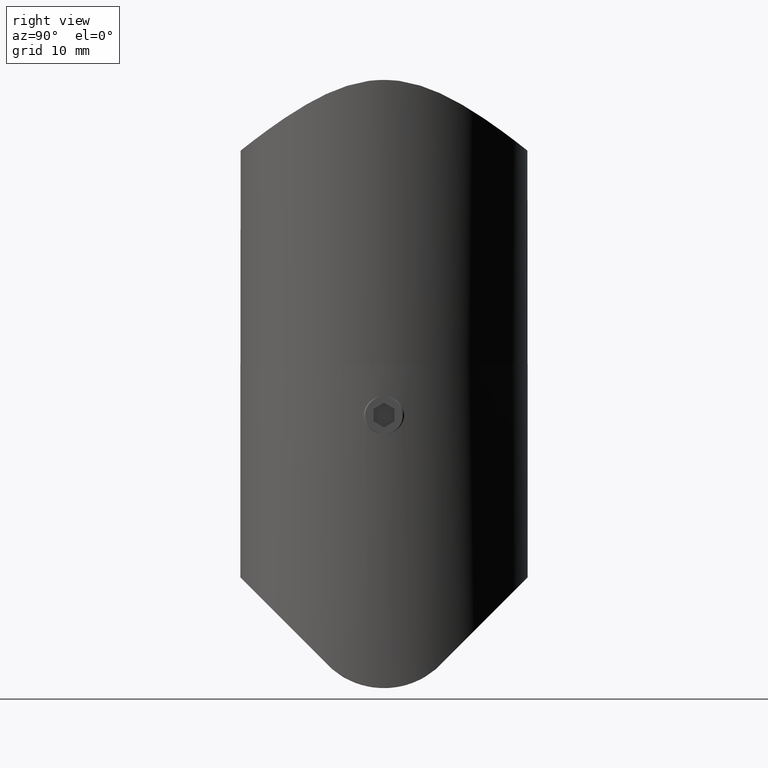
[diagram: clean part render]
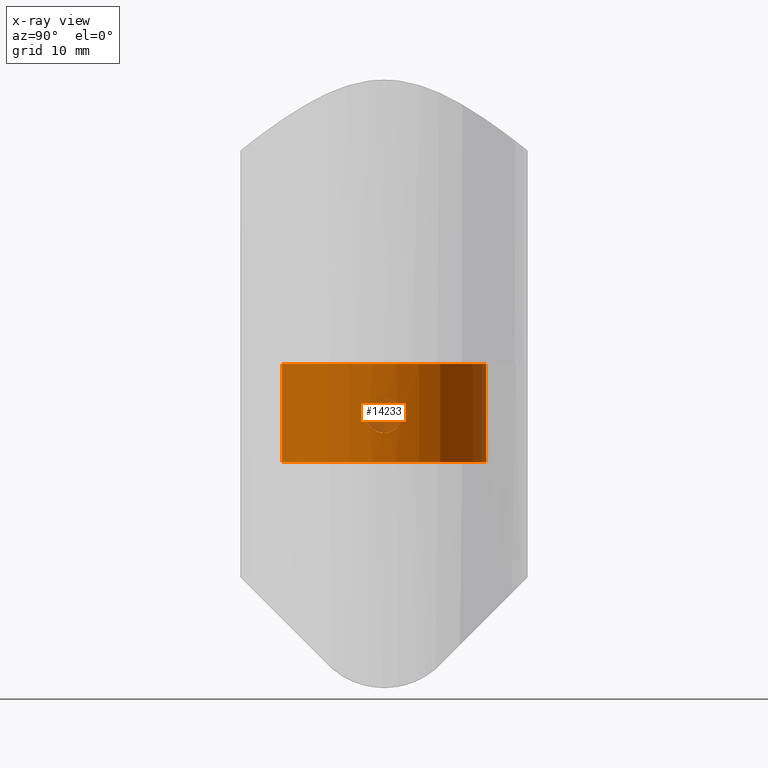
[diagram: x-ray — body ghosted, one internal face saturated and labeled with its STEP entity id]
A machine part, right view, then the same camera in x-ray: the body is ghosted and one INTERNAL B-rep face — a face not visible from any outside direction — is saturated and labeled: STEP entity #14233.
In plain terms, the highlighted cylindrical surface (bore or boss wall) has radius 12 mm, axis along (0, 0, 1).
Its self-contained STEP definition (entity closure, byte-faithful):
#163 = DIRECTION ( 'NONE',  ( -1.000000000000000000, 0.000000000000000000, 0.000000000000000000 ) ) ;
#239 = DIRECTION ( 'NONE',  ( -1.000000000000000000, 0.000000000000000000, 0.000000000000000000 ) ) ;
#333 = CARTESIAN_POINT ( 'NONE',  ( 11.85073445340301035, 1.887576422289822142, 6.930609710695841308 ) ) ;
#553 = B_SPLINE_CURVE_WITH_KNOTS ( 'NONE', 3,
 ( #3588, #10240, #6943, #11742, #1535, #10384, #10443, #13570, #729, #3736, #8084, #4869, #1449, #3640, #3689, #5118, #2497, #333, #5844, #7038, #2538, #11396, #10336, #12516, #11448, #4809, #9562, #1864, #9609, #5210, #778, #11788, #8508, #2985, #7388, #14000, #1826, #10720, #10676, #4044, #8455, #4086, #11838, #2933, #5155, #12894, #6270, #8905, #2371, #11134, #2031, #7948, #941, #12280, #4445, #12338, #5580, #6666 ),
 .UNSPECIFIED., .T., .F.,
 ( 4, 2, 2, 2, 2, 2, 2, 2, 2, 2, 2, 2, 2, 2, 2, 2, 2, 2, 2, 2, 2, 2, 2, 2, 2, 2, 2, 2, 4 ),
 ( 0.000000000000000000, 0.0004110877741431806878, 0.0008221755482863613755, 0.001233263322429542118, 0.001644351096572722751, 0.002466526644859083368, 0.003288702193145444201, 0.003699789967288625702, 0.004110877741431807203, 0.004521965515574989138, 0.004933053289718171072, 0.005344141063861353874, 0.005755228838004534941, 0.006166316612147717743, 0.006577404386290899678, 0.007399579934577264415, 0.007810667708720446349, 0.008221755482863628284, 0.008632843257006811086, 0.009043931031149992153, 0.009455018805293174955, 0.009866106579436357757, 0.01027719435357953882, 0.01068828212772272163, 0.01109936990186590269, 0.01151045767600908550, 0.01233263322429544763, 0.01274372099843863043, 0.01315480877258181150 ),
 .UNSPECIFIED. ) ;
#729 = CARTESIAN_POINT ( 'NONE',  ( 11.91979888924957542, 1.388480957413880557, 4.418606647993144954 ) ) ;
#778 = CARTESIAN_POINT ( 'NONE',  ( 11.99004954306560577, -0.5503883424061336571, 8.044983021353907304 ) ) ;
#941 = CARTESIAN_POINT ( 'NONE',  ( 11.95583868080448298, -1.059235442716479625, 4.166198353229350282 ) ) ;
#1449 = CARTESIAN_POINT ( 'NONE',  ( 11.81484956178276491, 2.099840436459508020, 5.724290231699654896 ) ) ;
#1535 = CARTESIAN_POINT ( 'NONE',  ( 11.98151183172213408, 0.6779378043882480220, 4.007680910537608554 ) ) ;
#1676 = VERTEX_POINT ( 'NONE', #6864 ) ;
#1826 = CARTESIAN_POINT ( 'NONE',  ( 11.88360518176614455, -1.669086411898565547, 7.281751924229717510 ) ) ;
#1864 = CARTESIAN_POINT ( 'NONE',  ( 11.99755274049298670, 0.2773594515023603546, 8.086139662524750804 ) ) ;
#2031 = CARTESIAN_POINT ( 'NONE',  ( 11.89558327999342424, -1.582580269031046649, 4.612880063868898262 ) ) ;
#2371 = CARTESIAN_POINT ( 'NONE',  ( 11.86092440456028640, -1.823295257947106229, 4.949067841735944384 ) ) ;
#2497 = CARTESIAN_POINT ( 'NONE',  ( 11.83346516143669902, 1.992976193566196041, 6.676036297475418380 ) ) ;
#2538 = CARTESIAN_POINT ( 'NONE',  ( 11.89553171067913340, 1.583040996913481768, 7.386752282683318960 ) ) ;
#2552 = DIRECTION ( 'NONE',  ( 0.000000000000000000, 0.000000000000000000, -1.000000000000000000 ) ) ;
#2933 = CARTESIAN_POINT ( 'NONE',  ( 11.81480205006285011, -2.100107742461963412, 5.862900920845062203 ) ) ;
#2985 = CARTESIAN_POINT ( 'NONE',  ( 11.93197218499959789, -1.281120951505777317, 7.669636394084995423 ) ) ;
#3555 = EDGE_CURVE ( 'NONE', #10667, #10667, #6420, .T. ) ;
#3588 = CARTESIAN_POINT ( 'NONE',  ( 12.00000000000000178, -8.944667923005411581E-16, 3.899999999999990141 ) ) ;
#3640 = CARTESIAN_POINT ( 'NONE',  ( 11.81480711405181161, 2.100079251906457056, 6.136027825990297835 ) ) ;
#3689 = CARTESIAN_POINT ( 'NONE',  ( 11.81726473798052979, 2.086383612213994265, 6.275473674643900601 ) ) ;
#3736 = CARTESIAN_POINT ( 'NONE',  ( 11.88363963771688425, 1.678406588973371694, 4.708609844554992208 ) ) ;
#3903 = FACE_BOUND ( 'NONE', #12167, .T. ) ;
#4044 = CARTESIAN_POINT ( 'NONE',  ( 11.83365049448734041, -1.991881971882786484, 6.679269136001737550 ) ) ;
#4086 = CARTESIAN_POINT ( 'NONE',  ( 11.81732158297307578, -2.086061813760280437, 6.277659829950015258 ) ) ;
#4445 = CARTESIAN_POINT ( 'NONE',  ( 11.98826971918961348, -0.5475403247006498386, 3.967925917865787522 ) ) ;
#4734 = AXIS2_PLACEMENT_3D ( 'NONE', #10151, #2552, #163 ) ;
#4809 = CARTESIAN_POINT ( 'NONE',  ( 11.98151228912667499, 0.6779080366305414440, 7.992320321767015123 ) ) ;
#4869 = CARTESIAN_POINT ( 'NONE',  ( 11.82504449829075632, 2.044408044357564513, 5.447579286169204948 ) ) ;
#5118 = CARTESIAN_POINT ( 'NONE',  ( 11.82661786571889628, 2.032695826505255710, 6.545004586810996727 ) ) ;
#5155 = CARTESIAN_POINT ( 'NONE',  ( 11.81722603926612614, -2.086600151662308278, 5.726333217600902081 ) ) ;
#5210 = CARTESIAN_POINT ( 'NONE',  ( 12.00001891821712974, -0.2735354104619608928, 8.100108104105999018 ) ) ;
#5474 = CYLINDRICAL_SURFACE ( 'NONE', #6452, 12.00000000000000178 ) ;
#5543 = ORIENTED_EDGE ( 'NONE', *, *, #3555, .T. ) ;
#5580 = CARTESIAN_POINT ( 'NONE',  ( 12.00000000000000178, -0.1390225640938828888, 3.899999999999990141 ) ) ;
#5677 = EDGE_CURVE ( 'NONE', #7016, #7016, #8634, .T. ) ;
#5844 = CARTESIAN_POINT ( 'NONE',  ( 11.86112961740384542, 1.821947627606113951, 7.053175765665407049 ) ) ;
#5950 = AXIS2_PLACEMENT_3D ( 'NONE', #6787, #10083, #239 ) ;
#6270 = CARTESIAN_POINT ( 'NONE',  ( 11.83348956523701823, -1.992827810120422205, 5.323596302788391021 ) ) ;
#6420 = CIRCLE ( 'NONE', #4734, 12.00000000000000178 ) ;
#6452 = AXIS2_PLACEMENT_3D ( 'NONE', #8582, #14038, #9637 ) ;
#6666 = CARTESIAN_POINT ( 'NONE',  ( 12.00000000000000178, -8.944667923005411581E-16, 3.899999999999990141 ) ) ;
#6787 = CARTESIAN_POINT ( 'NONE',  ( 0.000000000000000000, 0.000000000000000000, 11.49999999999992717 ) ) ;
#6864 = CARTESIAN_POINT ( 'NONE',  ( 12.00000000000000178, -7.347880794884120722E-16, 3.899999999999989253 ) ) ;
#6943 = CARTESIAN_POINT ( 'NONE',  ( 11.99758661110946534, 0.2756691184617635071, 3.913668504053595232 ) ) ;
#7016 = VERTEX_POINT ( 'NONE', #13356 ) ;
#7038 = CARTESIAN_POINT ( 'NONE',  ( 11.88346114303485557, 1.670101859341210693, 7.280403112519442388 ) ) ;
#7163 = EDGE_LOOP ( 'NONE', ( #5543 ) ) ;
#7388 = CARTESIAN_POINT ( 'NONE',  ( 11.92000811184873044, -1.386700109079762377, 7.582971449647867956 ) ) ;
#7911 = FACE_OUTER_BOUND ( 'NONE', #13759, .T. ) ;
#7948 = CARTESIAN_POINT ( 'NONE',  ( 11.93172128118157005, -1.293009970936234376, 4.322867531882407022 ) ) ;
#8084 = CARTESIAN_POINT ( 'NONE',  ( 11.85938010180748847, 1.834771168086872795, 4.942461510080877751 ) ) ;
#8455 = CARTESIAN_POINT ( 'NONE',  ( 11.82667835274314960, -2.032344071998362534, 6.546192681212224862 ) ) ;
#8508 = CARTESIAN_POINT ( 'NONE',  ( 11.95433794049143827, -1.052157554987844135, 7.822613799004662027 ) ) ;
#8582 = CARTESIAN_POINT ( 'NONE',  ( 0.000000000000000000, 0.000000000000000000, 11.49999999999992717 ) ) ;
#8634 = CIRCLE ( 'NONE', #5950, 12.00000000000000178 ) ;
#8905 = CARTESIAN_POINT ( 'NONE',  ( 11.85071665137476238, -1.887684512886479427, 5.069660372659834380 ) ) ;
#9562 = CARTESIAN_POINT ( 'NONE',  ( 11.98828488230610212, 0.5470151797888817002, 8.032161743065033832 ) ) ;
#9609 = CARTESIAN_POINT ( 'NONE',  ( 11.99999049797130191, 0.1380107357596315754, 8.099945702689009153 ) ) ;
#9637 = DIRECTION ( 'NONE',  ( -1.000000000000000000, 0.000000000000000000, 0.000000000000000000 ) ) ;
#10083 = DIRECTION ( 'NONE',  ( 0.000000000000000000, 0.000000000000000000, -1.000000000000000000 ) ) ;
#10151 = CARTESIAN_POINT ( 'NONE',  ( 0.000000000000000000, 0.000000000000000000, 0.000000000000000000 ) ) ;
#10240 = CARTESIAN_POINT ( 'NONE',  ( 12.00000000000000178, 0.1390225640938811125, 3.899999999999989697 ) ) ;
#10336 = CARTESIAN_POINT ( 'NONE',  ( 11.93187980565469530, 1.281899275903435775, 7.668955991529864846 ) ) ;
#10384 = CARTESIAN_POINT ( 'NONE',  ( 11.96442116355708407, 0.9321221279122055003, 4.113181683491645479 ) ) ;
#10443 = CARTESIAN_POINT ( 'NONE',  ( 11.95429157110415730, 1.052635373737397240, 4.177702455116077296 ) ) ;
#10667 = VERTEX_POINT ( 'NONE', #13408 ) ;
#10676 = CARTESIAN_POINT ( 'NONE',  ( 11.85098633725269401, -1.886001232725555754, 6.933809241330304296 ) ) ;
#10720 = CARTESIAN_POINT ( 'NONE',  ( 11.86122223683398680, -1.821353511792389801, 7.054233764746957291 ) ) ;
#10841 = FACE_OUTER_BOUND ( 'NONE', #7163, .T. ) ;
#11134 = CARTESIAN_POINT ( 'NONE',  ( 11.88335354840744174, -1.670880537889620987, 4.720538305759934161 ) ) ;
#11396 = CARTESIAN_POINT ( 'NONE',  ( 11.91990506011928197, 1.387644347599307215, 7.582259098887381477 ) ) ;
#11448 = CARTESIAN_POINT ( 'NONE',  ( 11.96444018425252942, 0.9318621776127408163, 7.886937320789672690 ) ) ;
#11742 = CARTESIAN_POINT ( 'NONE',  ( 11.98839789607710493, 0.5444206455312669002, 3.967174691575598544 ) ) ;
#11788 = CARTESIAN_POINT ( 'NONE',  ( 11.96460655519219785, -0.9296471495185146816, 7.887982229435070103 ) ) ;
#11838 = CARTESIAN_POINT ( 'NONE',  ( 11.81484057874540206, -2.099890975967359186, 6.140380114349037299 ) ) ;
#12138 = ORIENTED_EDGE ( 'NONE', *, *, #5677, .F. ) ;
#12167 = EDGE_LOOP ( 'NONE', ( #13587 ) ) ;
#12280 = CARTESIAN_POINT ( 'NONE',  ( 11.98136072408851760, -0.6804482128722012524, 4.008595400150814392 ) ) ;
#12338 = CARTESIAN_POINT ( 'NONE',  ( 11.99758543647637943, -0.2763240157166889643, 3.913670562736291547 ) ) ;
#12516 = CARTESIAN_POINT ( 'NONE',  ( 11.95409979737489437, 1.054760392010277936, 7.821032775836692430 ) ) ;
#12894 = CARTESIAN_POINT ( 'NONE',  ( 11.82651144408109189, -2.033312204027048153, 5.457381181988194108 ) ) ;
#13356 = CARTESIAN_POINT ( 'NONE',  ( -12.00000000000000178, 0.000000000000000000, 11.49999999999992717 ) ) ;
#13408 = CARTESIAN_POINT ( 'NONE',  ( -12.00000000000000178, 0.000000000000000000, 0.000000000000000000 ) ) ;
#13550 = EDGE_CURVE ( 'NONE', #1676, #1676, #553, .T. ) ;
#13570 = CARTESIAN_POINT ( 'NONE',  ( 11.93201236731082204, 1.280706470412639186, 4.330089670438428406 ) ) ;
#13587 = ORIENTED_EDGE ( 'NONE', *, *, #13550, .T. ) ;
#13759 = EDGE_LOOP ( 'NONE', ( #12138 ) ) ;
#14000 = CARTESIAN_POINT ( 'NONE',  ( 11.89586917460358073, -1.580451568311318722, 7.389571388286469755 ) ) ;
#14038 = DIRECTION ( 'NONE',  ( 0.000000000000000000, 0.000000000000000000, -1.000000000000000000 ) ) ;
#14233 = ADVANCED_FACE ( 'NONE', ( #3903, #7911, #10841 ), #5474, .F. ) ;